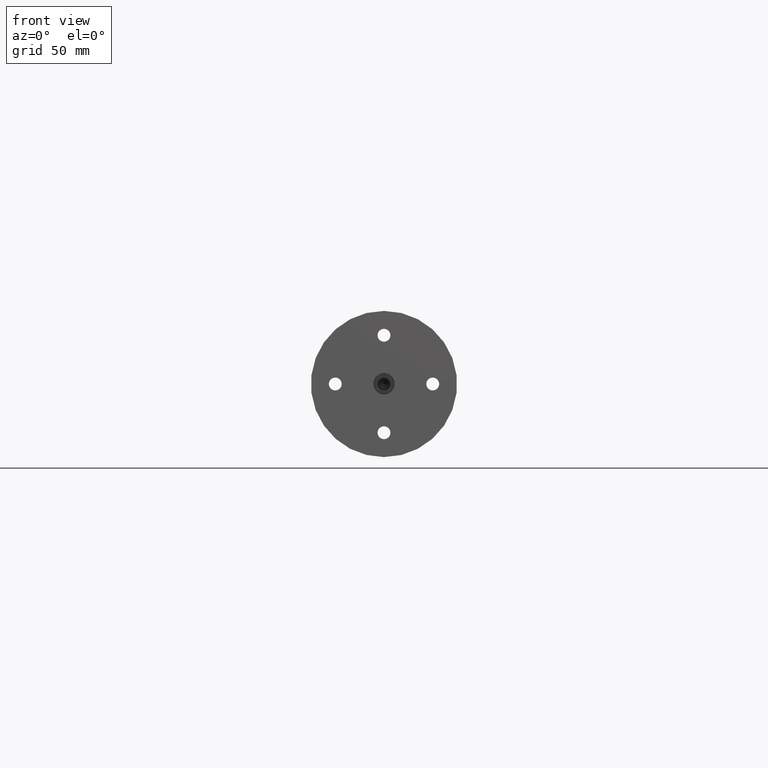
[diagram: clean part render]
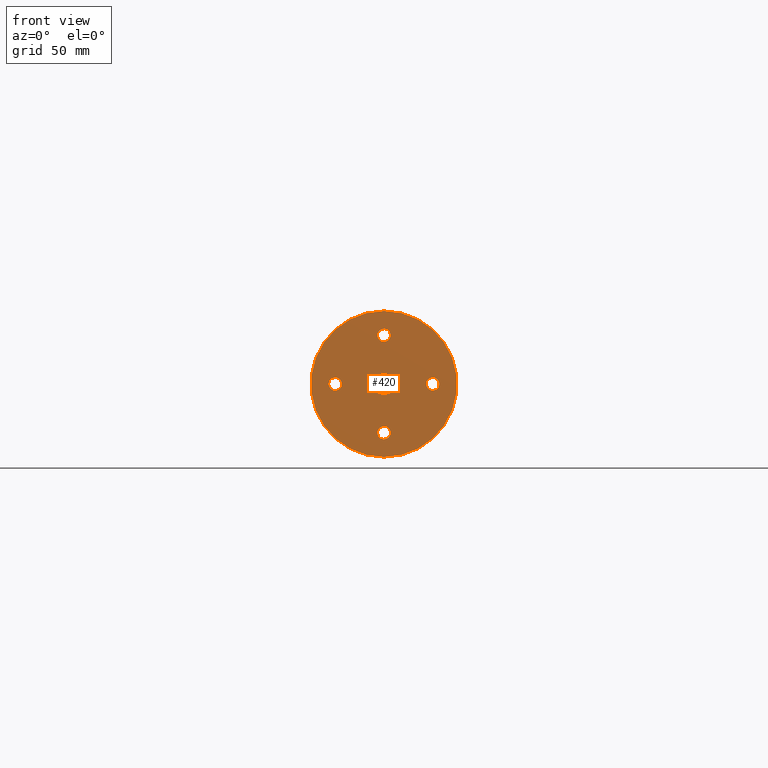
[diagram: same view with one face highlighted and labeled with its STEP entity id]
A machine part, front view. The second image highlights one B-rep face of the part: STEP entity #420.
In plain terms, the highlighted planar face has unit normal (0, 1, 0).
Its self-contained STEP definition (entity closure, byte-faithful):
#1 = DIRECTION ( 'NONE',  ( -0.0000000000000000000, -1.000000000000000000, -0.0000000000000000000 ) ) ;
#6 = PLANE ( 'NONE',  #458 ) ;
#8 = VERTEX_POINT ( 'NONE', #823 ) ;
#33 = CARTESIAN_POINT ( 'NONE',  ( -46.05816251671784300, 55.52719886414515600, 21.66964233481589700 ) ) ;
#38 = DIRECTION ( 'NONE',  ( -0.0000000000000000000, 1.000000000000000000, -0.0000000000000000000 ) ) ;
#48 = CARTESIAN_POINT ( 'NONE',  ( -21.05816251671766500, 55.52719886414515600, -6.630357665184021700 ) ) ;
#126 = EDGE_LOOP ( 'NONE', ( #721, #598 ) ) ;
#127 = VERTEX_POINT ( 'NONE', #628 ) ;
#159 = CARTESIAN_POINT ( 'NONE',  ( -46.05816251671766500, 55.52719886414515600, -3.330357665184104500 ) ) ;
#186 = EDGE_LOOP ( 'NONE', ( #1130, #1388 ) ) ;
#204 = VERTEX_POINT ( 'NONE', #228 ) ;
#213 = AXIS2_PLACEMENT_3D ( 'NONE', #689, #826, #696 ) ;
#223 = FACE_BOUND ( 'NONE', #1461, .T. ) ;
#228 = CARTESIAN_POINT ( 'NONE',  ( -71.05816251671767200, 55.52719886414515600, -0.03035766518436197300 ) ) ;
#244 = EDGE_LOOP ( 'NONE', ( #465, #861 ) ) ;
#254 = AXIS2_PLACEMENT_3D ( 'NONE', #933, #1305, #1056 ) ;
#255 = DIRECTION ( 'NONE',  ( 0.0000000000000000000, 0.0000000000000000000, -1.000000000000000000 ) ) ;
#279 = DIRECTION ( 'NONE',  ( -0.0000000000000000000, 1.000000000000000000, -0.0000000000000000000 ) ) ;
#281 = AXIS2_PLACEMENT_3D ( 'NONE', #33, #279, #1212 ) ;
#285 = EDGE_CURVE ( 'NONE', #965, #773, #1052, .T. ) ;
#290 = CARTESIAN_POINT ( 'NONE',  ( -46.05816251671766500, 55.52719886414515600, -28.33035766518410600 ) ) ;
#293 = CARTESIAN_POINT ( 'NONE',  ( -71.05816251671767200, 55.52719886414515600, -3.330357665184366500 ) ) ;
#322 = CIRCLE ( 'NONE', #996, 3.300000000000004300 ) ;
#331 = ORIENTED_EDGE ( 'NONE', *, *, #971, .T. ) ;
#332 = AXIS2_PLACEMENT_3D ( 'NONE', #726, #1246, #1498 ) ;
#342 = CARTESIAN_POINT ( 'NONE',  ( -46.05816251671766500, 55.52719886414515600, -8.830357665184099100 ) ) ;
#359 = FACE_BOUND ( 'NONE', #837, .T. ) ;
#364 = ORIENTED_EDGE ( 'NONE', *, *, #285, .T. ) ;
#374 = EDGE_CURVE ( 'NONE', #944, #1408, #1421, .T. ) ;
#376 = CARTESIAN_POINT ( 'NONE',  ( -46.05816251671784300, 55.52719886414515600, 24.96964233481590200 ) ) ;
#381 = EDGE_CURVE ( 'NONE', #758, #1234, #596, .T. ) ;
#392 = DIRECTION ( 'NONE',  ( -0.0000000000000000000, 1.000000000000000000, -0.0000000000000000000 ) ) ;
#398 = CARTESIAN_POINT ( 'NONE',  ( -46.05816251671766500, 55.52719886414515600, 2.169642334815890200 ) ) ;
#399 = AXIS2_PLACEMENT_3D ( 'NONE', #1048, #392, #1579 ) ;
#420 = ADVANCED_FACE ( 'NONE', ( #1472, #359, #1385, #223, #1336, #853 ), #6, .F. ) ;
#431 = EDGE_CURVE ( 'NONE', #773, #965, #322, .T. ) ;
#458 = AXIS2_PLACEMENT_3D ( 'NONE', #655, #1078, #943 ) ;
#465 = ORIENTED_EDGE ( 'NONE', *, *, #381, .F. ) ;
#488 = AXIS2_PLACEMENT_3D ( 'NONE', #1067, #1, #255 ) ;
#495 = CIRCLE ( 'NONE', #665, 3.300000000000004300 ) ;
#498 = CARTESIAN_POINT ( 'NONE',  ( -46.05816251671766500, 55.52719886414515600, -25.03035766518410200 ) ) ;
#503 = CIRCLE ( 'NONE', #281, 3.300000000000004300 ) ;
#524 = EDGE_CURVE ( 'NONE', #127, #948, #503, .T. ) ;
#555 = DIRECTION ( 'NONE',  ( 0.0000000000000000000, 0.0000000000000000000, 1.000000000000000000 ) ) ;
#596 = CIRCLE ( 'NONE', #488, 5.499999999999994700 ) ;
#598 = ORIENTED_EDGE ( 'NONE', *, *, #524, .T. ) ;
#628 = CARTESIAN_POINT ( 'NONE',  ( -46.05816251671784300, 55.52719886414515600, 18.36964233481589300 ) ) ;
#634 = VERTEX_POINT ( 'NONE', #713 ) ;
#655 = CARTESIAN_POINT ( 'NONE',  ( -46.05816251671766500, 55.52719886414515600, -3.330357665184104500 ) ) ;
#665 = AXIS2_PLACEMENT_3D ( 'NONE', #290, #1219, #1489 ) ;
#689 = CARTESIAN_POINT ( 'NONE',  ( -71.05816251671767200, 55.52719886414515600, -3.330357665184366500 ) ) ;
#696 = DIRECTION ( 'NONE',  ( 0.0000000000000000000, 0.0000000000000000000, 1.000000000000000000 ) ) ;
#709 = CIRCLE ( 'NONE', #1434, 5.499999999999994700 ) ;
#713 = CARTESIAN_POINT ( 'NONE',  ( -46.05816251671766500, 55.52719886414515600, -40.83035766518410300 ) ) ;
#721 = ORIENTED_EDGE ( 'NONE', *, *, #1465, .T. ) ;
#726 = CARTESIAN_POINT ( 'NONE',  ( -46.05816251671766500, 55.52719886414515600, -3.330357665184104500 ) ) ;
#758 = VERTEX_POINT ( 'NONE', #342 ) ;
#773 = VERTEX_POINT ( 'NONE', #1411 ) ;
#812 = CARTESIAN_POINT ( 'NONE',  ( -46.05816251671766500, 55.52719886414515600, -31.63035766518411400 ) ) ;
#822 = DIRECTION ( 'NONE',  ( 0.0000000000000000000, 0.0000000000000000000, 1.000000000000000000 ) ) ;
#823 = CARTESIAN_POINT ( 'NONE',  ( -71.05816251671767200, 55.52719886414515600, -6.630357665184370800 ) ) ;
#826 = DIRECTION ( 'NONE',  ( -0.0000000000000000000, 1.000000000000000000, -0.0000000000000000000 ) ) ;
#837 = EDGE_LOOP ( 'NONE', ( #1257, #331 ) ) ;
#853 = FACE_OUTER_BOUND ( 'NONE', #1648, .T. ) ;
#861 = ORIENTED_EDGE ( 'NONE', *, *, #1325, .F. ) ;
#927 = DIRECTION ( 'NONE',  ( 0.0000000000000000000, 0.0000000000000000000, 1.000000000000000000 ) ) ;
#928 = VERTEX_POINT ( 'NONE', #1549 ) ;
#933 = CARTESIAN_POINT ( 'NONE',  ( -21.05816251671766500, 55.52719886414515600, -3.330357665184017000 ) ) ;
#938 = CARTESIAN_POINT ( 'NONE',  ( -46.05816251671784300, 55.52719886414515600, 21.66964233481589700 ) ) ;
#943 = DIRECTION ( 'NONE',  ( 0.0000000000000000000, -0.0000000000000000000, 1.000000000000000000 ) ) ;
#944 = VERTEX_POINT ( 'NONE', #498 ) ;
#948 = VERTEX_POINT ( 'NONE', #376 ) ;
#955 = CIRCLE ( 'NONE', #1072, 3.300000000000004300 ) ;
#960 = EDGE_CURVE ( 'NONE', #204, #8, #1099, .T. ) ;
#965 = VERTEX_POINT ( 'NONE', #48 ) ;
#967 = AXIS2_PLACEMENT_3D ( 'NONE', #938, #1065, #927 ) ;
#971 = EDGE_CURVE ( 'NONE', #8, #204, #955, .T. ) ;
#996 = AXIS2_PLACEMENT_3D ( 'NONE', #1592, #1217, #555 ) ;
#1018 = EDGE_CURVE ( 'NONE', #928, #634, #1020, .T. ) ;
#1020 = CIRCLE ( 'NONE', #332, 37.50000000000000000 ) ;
#1048 = CARTESIAN_POINT ( 'NONE',  ( -46.05816251671766500, 55.52719886414515600, -28.33035766518410600 ) ) ;
#1052 = CIRCLE ( 'NONE', #254, 3.300000000000004300 ) ;
#1056 = DIRECTION ( 'NONE',  ( 0.0000000000000000000, 0.0000000000000000000, 1.000000000000000000 ) ) ;
#1065 = DIRECTION ( 'NONE',  ( -0.0000000000000000000, 1.000000000000000000, -0.0000000000000000000 ) ) ;
#1067 = CARTESIAN_POINT ( 'NONE',  ( -46.05816251671766500, 55.52719886414515600, -3.330357665184104500 ) ) ;
#1072 = AXIS2_PLACEMENT_3D ( 'NONE', #293, #38, #822 ) ;
#1076 = ORIENTED_EDGE ( 'NONE', *, *, #1018, .T. ) ;
#1078 = DIRECTION ( 'NONE',  ( 0.0000000000000000000, 1.000000000000000000, 0.0000000000000000000 ) ) ;
#1080 = DIRECTION ( 'NONE',  ( -0.0000000000000000000, -1.000000000000000000, -0.0000000000000000000 ) ) ;
#1092 = ORIENTED_EDGE ( 'NONE', *, *, #431, .T. ) ;
#1099 = CIRCLE ( 'NONE', #213, 3.300000000000004300 ) ;
#1101 = AXIS2_PLACEMENT_3D ( 'NONE', #1331, #1585, #1201 ) ;
#1130 = ORIENTED_EDGE ( 'NONE', *, *, #374, .T. ) ;
#1161 = CIRCLE ( 'NONE', #967, 3.300000000000004300 ) ;
#1201 = DIRECTION ( 'NONE',  ( 0.0000000000000000000, 0.0000000000000000000, -1.000000000000000000 ) ) ;
#1212 = DIRECTION ( 'NONE',  ( 0.0000000000000000000, 0.0000000000000000000, 1.000000000000000000 ) ) ;
#1217 = DIRECTION ( 'NONE',  ( -0.0000000000000000000, 1.000000000000000000, -0.0000000000000000000 ) ) ;
#1219 = DIRECTION ( 'NONE',  ( -0.0000000000000000000, 1.000000000000000000, -0.0000000000000000000 ) ) ;
#1234 = VERTEX_POINT ( 'NONE', #398 ) ;
#1246 = DIRECTION ( 'NONE',  ( -0.0000000000000000000, -1.000000000000000000, -0.0000000000000000000 ) ) ;
#1257 = ORIENTED_EDGE ( 'NONE', *, *, #960, .T. ) ;
#1278 = ORIENTED_EDGE ( 'NONE', *, *, #1280, .T. ) ;
#1280 = EDGE_CURVE ( 'NONE', #634, #928, #1488, .T. ) ;
#1305 = DIRECTION ( 'NONE',  ( -0.0000000000000000000, 1.000000000000000000, -0.0000000000000000000 ) ) ;
#1325 = EDGE_CURVE ( 'NONE', #1234, #758, #709, .T. ) ;
#1331 = CARTESIAN_POINT ( 'NONE',  ( -46.05816251671766500, 55.52719886414515600, -3.330357665184104500 ) ) ;
#1336 = FACE_BOUND ( 'NONE', #186, .T. ) ;
#1354 = EDGE_CURVE ( 'NONE', #1408, #944, #495, .T. ) ;
#1371 = DIRECTION ( 'NONE',  ( 0.0000000000000000000, 0.0000000000000000000, -1.000000000000000000 ) ) ;
#1385 = FACE_BOUND ( 'NONE', #126, .T. ) ;
#1388 = ORIENTED_EDGE ( 'NONE', *, *, #1354, .T. ) ;
#1408 = VERTEX_POINT ( 'NONE', #812 ) ;
#1411 = CARTESIAN_POINT ( 'NONE',  ( -21.05816251671766500, 55.52719886414515600, -0.03035766518401285900 ) ) ;
#1421 = CIRCLE ( 'NONE', #399, 3.300000000000004300 ) ;
#1434 = AXIS2_PLACEMENT_3D ( 'NONE', #159, #1080, #1371 ) ;
#1461 = EDGE_LOOP ( 'NONE', ( #1092, #364 ) ) ;
#1465 = EDGE_CURVE ( 'NONE', #948, #127, #1161, .T. ) ;
#1472 = FACE_BOUND ( 'NONE', #244, .T. ) ;
#1488 = CIRCLE ( 'NONE', #1101, 37.50000000000000000 ) ;
#1489 = DIRECTION ( 'NONE',  ( 0.0000000000000000000, 0.0000000000000000000, 1.000000000000000000 ) ) ;
#1498 = DIRECTION ( 'NONE',  ( 0.0000000000000000000, 0.0000000000000000000, -1.000000000000000000 ) ) ;
#1549 = CARTESIAN_POINT ( 'NONE',  ( -46.05816251671765800, 55.52719886414515600, 34.16964233481589700 ) ) ;
#1579 = DIRECTION ( 'NONE',  ( 0.0000000000000000000, 0.0000000000000000000, 1.000000000000000000 ) ) ;
#1585 = DIRECTION ( 'NONE',  ( -0.0000000000000000000, -1.000000000000000000, -0.0000000000000000000 ) ) ;
#1592 = CARTESIAN_POINT ( 'NONE',  ( -21.05816251671766500, 55.52719886414515600, -3.330357665184017000 ) ) ;
#1648 = EDGE_LOOP ( 'NONE', ( #1278, #1076 ) ) ;